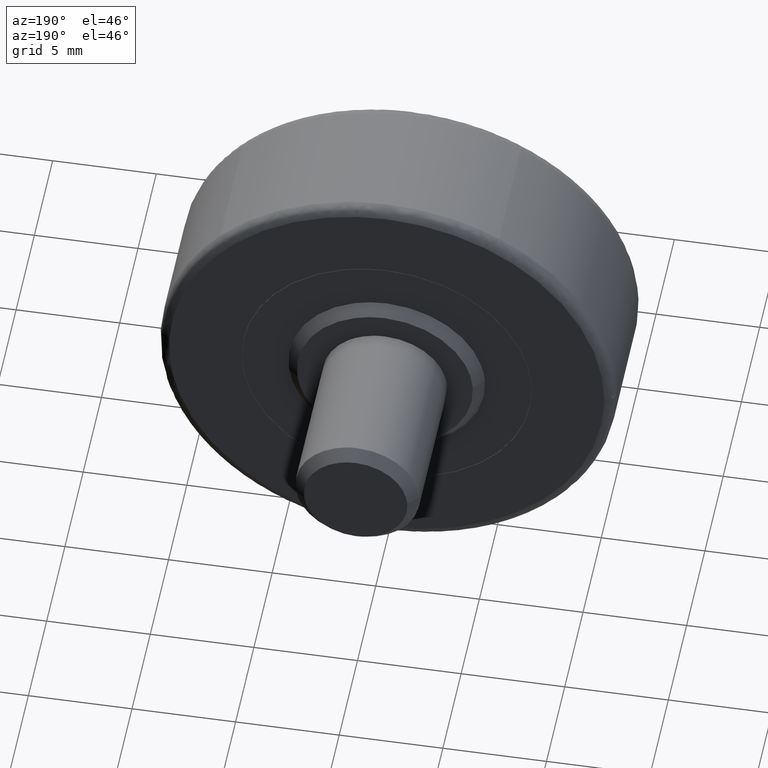
[diagram: clean part render]
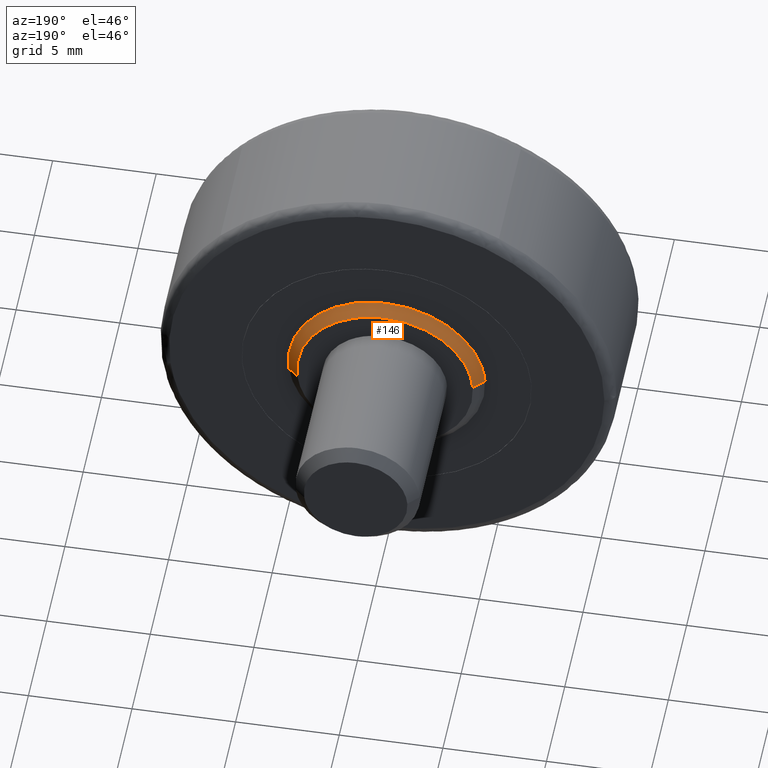
[diagram: same view with one face highlighted and labeled with its STEP entity id]
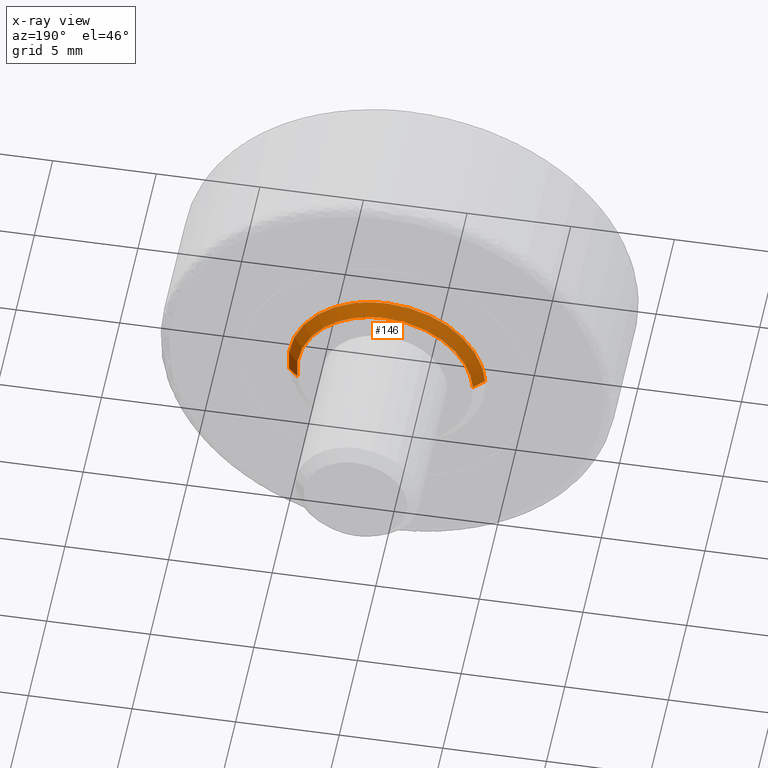
[diagram: x-ray of the same camera — body ghosted, the highlighted face saturated]
A machine part, auxiliary view. The second image highlights one B-rep face of the part: STEP entity #146.
The next image is the same camera in x-ray: the body ghosted, the highlighted face saturated — about 0% of this face is hidden behind the body in this view.
In plain terms, the highlighted face is a freeform B-spline surface patch.
Its self-contained STEP definition (entity closure, byte-faithful):
#44=CARTESIAN_POINT('',(4.207877867966035,7.512500000000003,-0.500170069358014));
#45=CARTESIAN_POINT('',(4.222192520463465,7.512500000000001,-0.379742412603431));
#46=CARTESIAN_POINT('',(4.229596208312660,7.512500000000001,-0.258693186278957));
#47=CARTESIAN_POINT('',(4.488289394591616,7.512500000000002,3.970903022033703));
#48=CARTESIAN_POINT('',(0.258693186278956,7.512500000000001,4.229596208312660));
#49=CARTESIAN_POINT('',(-3.970903022033703,7.512500000000002,4.488289394591615));
#50=CARTESIAN_POINT('',(-4.229596208312660,7.512500000000001,0.258693186278956));
#51=CARTESIAN_POINT('',(4.729518184783965,6.987187500000000,-0.562174928251144));
#52=CARTESIAN_POINT('',(4.745607389703827,6.987187499999999,-0.426818149741070));
#53=CARTESIAN_POINT('',(4.753928894608662,6.987187499999999,-0.290762747203362));
#54=CARTESIAN_POINT('',(5.044691641812023,6.987187499999999,4.463166147405300));
#55=CARTESIAN_POINT('',(0.290762747203362,6.987187499999999,4.753928894608662));
#56=CARTESIAN_POINT('',(-4.463166147405300,6.987187499999999,5.044691641812023));
#57=CARTESIAN_POINT('',(-4.753928894608662,6.987187499999999,0.290762747203362));
#65=(BOUNDED_SURFACE()B_SPLINE_SURFACE(2,1,((#44,#51),(#45,#52),(#46,#53),(#47,#54),(#48,#55),(#49,#56),(#50,#57)),.UNSPECIFIED.,.F.,.F.,.U.)B_SPLINE_SURFACE_WITH_KNOTS((3,2,2,3),(2,2),(0.0,0.315651445206419,8.206937575366869,16.098223705527321),(0.0,1.0),.UNSPECIFIED.)GEOMETRIC_REPRESENTATION_ITEM()RATIONAL_B_SPLINE_SURFACE(((0.977505800795127,0.977505800795127),(0.988284271247462,0.988284271247462),(1.0,1.0),(0.707106781186548,0.707106781186548),(1.0,1.0),(0.707106781186548,0.707106781186548),(1.0,1.0)))REPRESENTATION_ITEM('')SURFACE());
#66=CARTESIAN_POINT('',(4.716795250227488,6.999999999999023,-0.560662614627313));
#67=VERTEX_POINT('',#66);
#68=CARTESIAN_POINT('',(0.0,7.0,4.750000000000000));
#69=VERTEX_POINT('',#68);
#70=CARTESIAN_POINT('',(4.716795250227488,6.999999999999023,-0.560662614627314));
#71=CARTESIAN_POINT('',(4.750000000000000,7.0,-0.281314568354248));
#72=CARTESIAN_POINT('',(4.750000000000000,7.0,-2.492082E-016));
#73=CARTESIAN_POINT('',(4.750000000000000,6.999999999999999,4.750000000000000));
#74=CARTESIAN_POINT('',(0.0,7.0,4.750000000000000));
#82=(BOUNDED_CURVE()B_SPLINE_CURVE(2,(#70,#71,#72,#73,#74),.UNSPECIFIED.,.F.,.U.)B_SPLINE_CURVE_WITH_KNOTS((3,2,3),(0.229562473515100,0.250000000000000,0.500000000000000),.UNSPECIFIED.)CURVE()GEOMETRIC_REPRESENTATION_ITEM()RATIONAL_B_SPLINE_CURVE((0.956026754186819,0.976055948333010,1.0,0.707106781186548,1.0))REPRESENTATION_ITEM(''));
#83=EDGE_CURVE('',#67,#69,#82,.T.);
#84=ORIENTED_EDGE('',*,*,#83,.F.);
#85=CARTESIAN_POINT('',(4.220290487045932,7.499999999994490,-0.501645497334968));
#86=VERTEX_POINT('',#85);
#87=CARTESIAN_POINT('',(4.220290487045932,7.499999999994490,-0.501645497334968));
#88=CARTESIAN_POINT('',(4.716795250227488,6.999999999999023,-0.560662614627313));
#89=QUASI_UNIFORM_CURVE('',1,(#87,#88),.UNSPECIFIED.,.F.,.U.);
#90=EDGE_CURVE('',#86,#67,#89,.T.);
#91=ORIENTED_EDGE('',*,*,#90,.F.);
#92=CARTESIAN_POINT('',(0.0,7.500000000000000,4.250000000000000));
#93=VERTEX_POINT('',#92);
#94=CARTESIAN_POINT('',(4.220290487045932,7.499999999994490,-0.501645497334968));
#95=CARTESIAN_POINT('',(4.249999999999999,7.500000000000000,-0.251702508564168));
#96=CARTESIAN_POINT('',(4.250000000000000,7.500000000000000,-2.492082E-016));
#97=CARTESIAN_POINT('',(4.249999999999999,7.500000000000000,4.249999999999999));
#98=CARTESIAN_POINT('',(0.0,7.500000000000000,4.250000000000000));
#106=(BOUNDED_CURVE()B_SPLINE_CURVE(2,(#94,#95,#96,#97,#98),.UNSPECIFIED.,.F.,.U.)B_SPLINE_CURVE_WITH_KNOTS((3,2,3),(0.229562473512193,0.250000000000000,0.500000000000000),.UNSPECIFIED.)CURVE()GEOMETRIC_REPRESENTATION_ITEM()RATIONAL_B_SPLINE_CURVE((0.956026754181121,0.976055948329604,1.0,0.707106781186548,1.0))REPRESENTATION_ITEM(''));
#107=EDGE_CURVE('',#86,#93,#106,.T.);
#108=ORIENTED_EDGE('',*,*,#107,.T.);
#109=CARTESIAN_POINT('',(-4.242072893298040,7.499999999990484,0.259456293095542));
#110=VERTEX_POINT('',#109);
#111=CARTESIAN_POINT('',(0.0,7.500000000000000,4.250000000000000));
#112=CARTESIAN_POINT('',(-3.998000784213560,7.500000000000000,4.250000000000001));
#113=CARTESIAN_POINT('',(-4.242072893298041,7.499999999990484,0.259456293095542));
#121=(BOUNDED_CURVE()B_SPLINE_CURVE(2,(#111,#112,#113),.UNSPECIFIED.,.F.,.U.)B_SPLINE_CURVE_WITH_KNOTS((3,3),(0.500000000000000,0.739332962236125),.UNSPECIFIED.)CURVE()GEOMETRIC_REPRESENTATION_ITEM()RATIONAL_B_SPLINE_CURVE((1.0,0.719603993290011,0.976072041660679))REPRESENTATION_ITEM(''));
#122=EDGE_CURVE('',#93,#110,#121,.T.);
#123=ORIENTED_EDGE('',*,*,#122,.T.);
#124=CARTESIAN_POINT('',(-4.741140292506946,6.999999999994289,0.289980562833878));
#125=VERTEX_POINT('',#124);
#126=CARTESIAN_POINT('',(-4.242072893298040,7.499999999990484,0.259456293095542));
#127=CARTESIAN_POINT('',(-4.741140292506946,6.999999999994289,0.289980562833878));
#128=QUASI_UNIFORM_CURVE('',1,(#126,#127),.UNSPECIFIED.,.F.,.U.);
#129=EDGE_CURVE('',#110,#125,#128,.T.);
#130=ORIENTED_EDGE('',*,*,#129,.T.);
#131=CARTESIAN_POINT('',(0.0,7.0,4.750000000000000));
#132=CARTESIAN_POINT('',(-4.468353817720905,7.0,4.750000000000000));
#133=CARTESIAN_POINT('',(-4.741140292506947,6.999999999994289,0.289980562833878));
#141=(BOUNDED_CURVE()B_SPLINE_CURVE(2,(#131,#132,#133),.UNSPECIFIED.,.F.,.U.)B_SPLINE_CURVE_WITH_KNOTS((3,3),(0.500000000000000,0.739332962238841),.UNSPECIFIED.)CURVE()GEOMETRIC_REPRESENTATION_ITEM()RATIONAL_B_SPLINE_CURVE((1.0,0.719603993286830,0.976072041666499))REPRESENTATION_ITEM(''));
#142=EDGE_CURVE('',#69,#125,#141,.T.);
#143=ORIENTED_EDGE('',*,*,#142,.F.);
#144=EDGE_LOOP('',(#84,#91,#108,#123,#130,#143));
#145=FACE_OUTER_BOUND('',#144,.T.);
#146=ADVANCED_FACE('',(#145),#65,.T.);